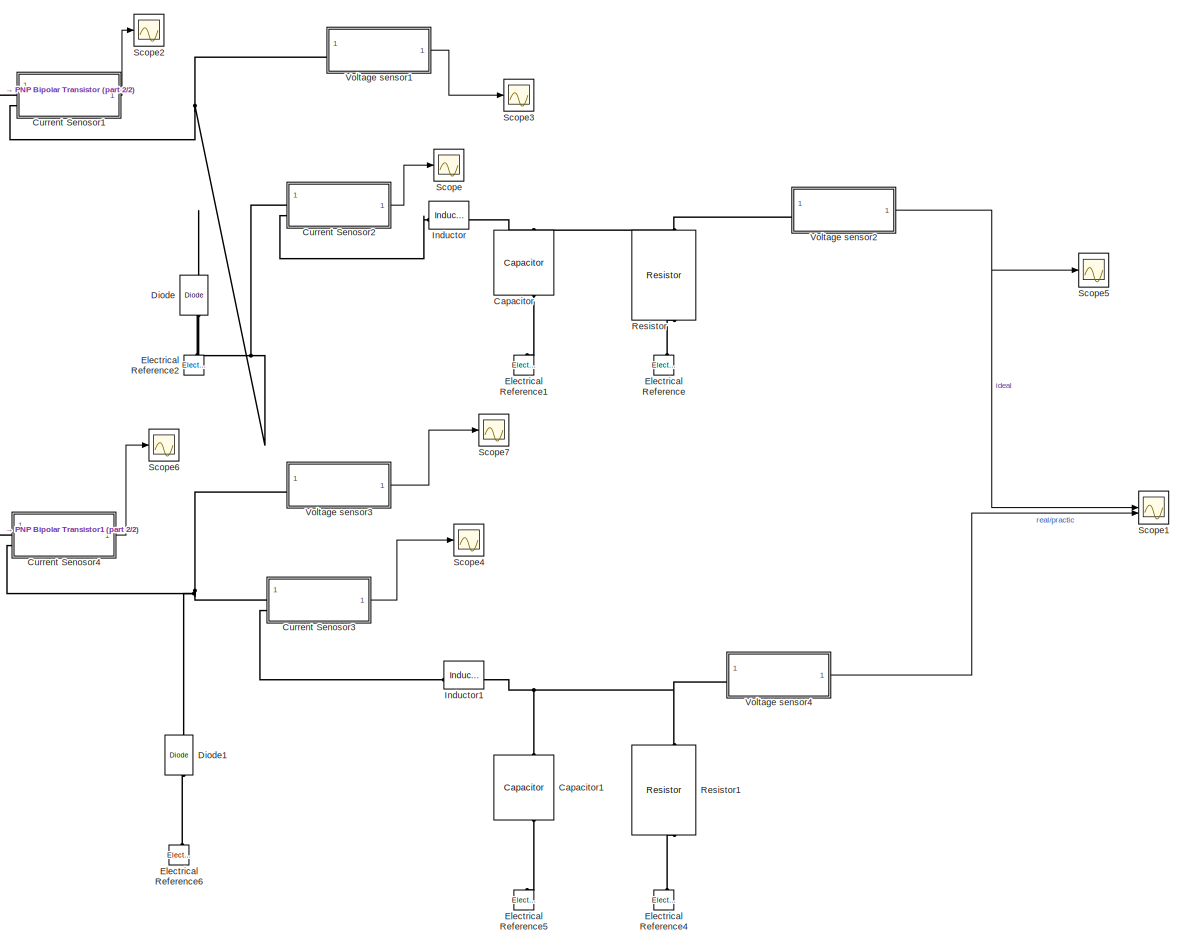
[diagram: root canvas - part 1/2, center side, full height]
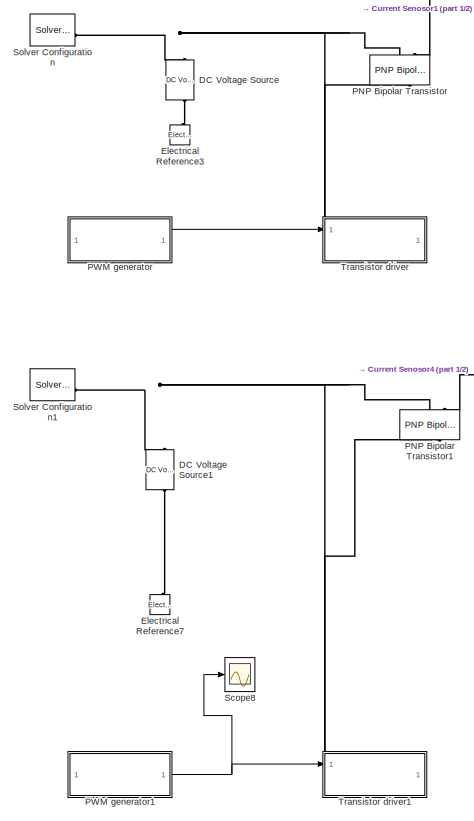
[diagram: root canvas - part 2/2, left side, full height]
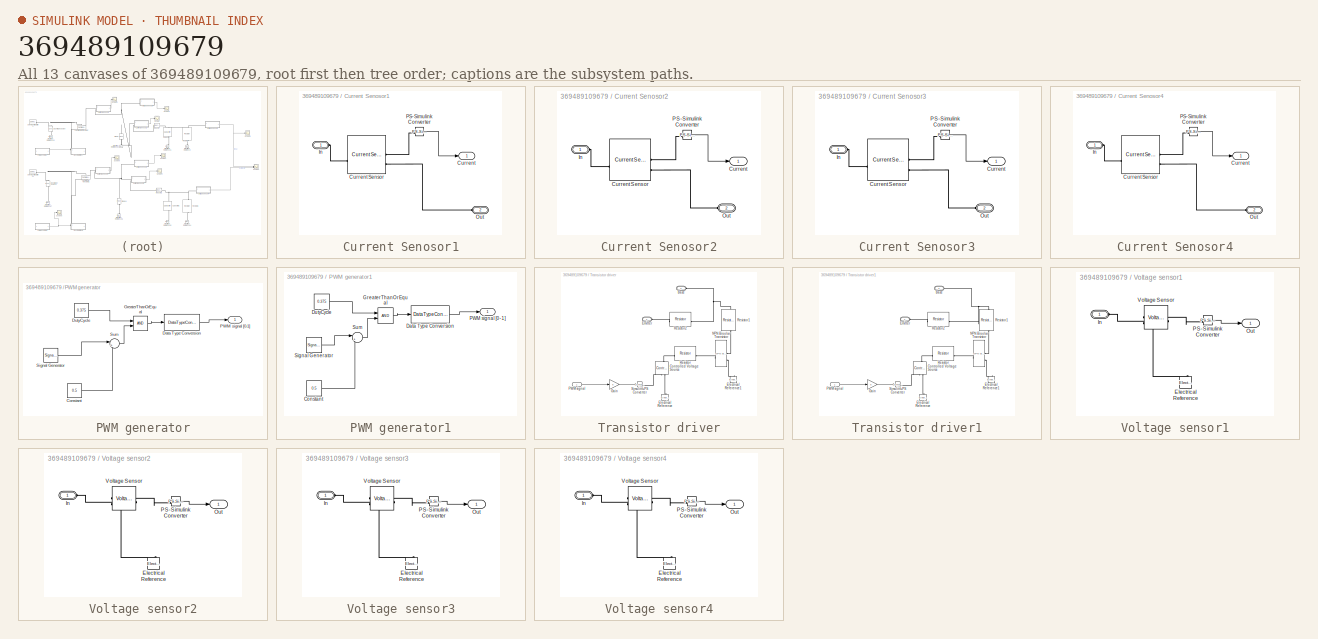
[diagram: thumbnail index - all 13 canvases of the model, root first then tree order]
MODEL slx_369489109679
KIND model
CONFIG AbsTol = auto
CONFIG EnableMultiTasking = off
CONFIG FixedStep = 1e-6
CONFIG MaxStep = auto
CONFIG MinStep = auto
CONFIG RelTol = 1e-5
CONFIG SampleTimeConstraint = Unconstrained
CONFIG SolverName = VariableStepAuto
CONFIG StartTime = 0.0
CONFIG StopTime = 0.05
BLOCK [Reference] Capacitor  REF=fl_lib/Electrical/Electrical Elements/Capacitor
  NameLocation = left
  SourceBlock = fl_lib/Electrical/Electrical Elements/Capacitor
  SourceType = Capacitor
BLOCK [Reference] Capacitor1  REF=fl_lib/Electrical/Electrical Elements/Capacitor
  NameLocation = left
  SourceBlock = fl_lib/Electrical/Electrical Elements/Capacitor
  SourceType = Capacitor
BLOCK [SubSystem] Current Senosor1
BLOCK [Outport] Current Senosor1/Current
BLOCK [Reference] Current Senosor1/Current Sensor  REF=fl_lib/Electrical/Electrical Sensors/Current Sensor
  SourceBlock = fl_lib/Electrical/Electrical Sensors/Current Sensor
  SourceType = Current Sensor
BLOCK [PMIOPort] Current Senosor1/In
  Side = Left
BLOCK [PMIOPort] Current Senosor1/Out
  NameLocation = top
  Port = 2
  Side = Left
BLOCK [Reference] Current Senosor1/PS-Simulink Converter  REF=nesl_utility/PS-Simulink
Converter
  SourceBlock = nesl_utility/PS-Simulink\nConverter
  SourceType = PS-Simulink\nConverter
BLOCK [SubSystem] Current Senosor2
BLOCK [Outport] Current Senosor2/Current
BLOCK [Reference] Current Senosor2/Current Sensor  REF=fl_lib/Electrical/Electrical Sensors/Current Sensor
  SourceBlock = fl_lib/Electrical/Electrical Sensors/Current Sensor
  SourceType = Current Sensor
BLOCK [PMIOPort] Current Senosor2/In
  Side = Left
BLOCK [PMIOPort] Current Senosor2/Out
  NameLocation = top
  Port = 2
  Side = Left
BLOCK [Reference] Current Senosor2/PS-Simulink Converter  REF=nesl_utility/PS-Simulink
Converter
  SourceBlock = nesl_utility/PS-Simulink\nConverter
  SourceType = PS-Simulink\nConverter
BLOCK [SubSystem] Current Senosor3
BLOCK [Outport] Current Senosor3/Current
BLOCK [Reference] Current Senosor3/Current Sensor  REF=fl_lib/Electrical/Electrical Sensors/Current Sensor
  SourceBlock = fl_lib/Electrical/Electrical Sensors/Current Sensor
  SourceType = Current Sensor
BLOCK [PMIOPort] Current Senosor3/In
  Side = Left
BLOCK [PMIOPort] Current Senosor3/Out
  NameLocation = top
  Port = 2
  Side = Left
BLOCK [Reference] Current Senosor3/PS-Simulink Converter  REF=nesl_utility/PS-Simulink
Converter
  SourceBlock = nesl_utility/PS-Simulink\nConverter
  SourceType = PS-Simulink\nConverter
BLOCK [SubSystem] Current Senosor4
BLOCK [Outport] Current Senosor4/Current
BLOCK [Reference] Current Senosor4/Current Sensor  REF=fl_lib/Electrical/Electrical Sensors/Current Sensor
  SourceBlock = fl_lib/Electrical/Electrical Sensors/Current Sensor
  SourceType = Current Sensor
BLOCK [PMIOPort] Current Senosor4/In
  Side = Left
BLOCK [PMIOPort] Current Senosor4/Out
  NameLocation = top
  Port = 2
  Side = Left
BLOCK [Reference] Current Senosor4/PS-Simulink Converter  REF=nesl_utility/PS-Simulink
Converter
  SourceBlock = nesl_utility/PS-Simulink\nConverter
  SourceType = PS-Simulink\nConverter
BLOCK [Reference] DC Voltage Source  REF=fl_lib/Electrical/Electrical Sources/DC Voltage Source
  NameLocation = right
  SourceBlock = fl_lib/Electrical/Electrical Sources/DC Voltage Source
  SourceType = DC Voltage Source
BLOCK [Reference] DC Voltage Source1  REF=fl_lib/Electrical/Electrical Sources/DC Voltage Source
  NameLocation = right
  SourceBlock = fl_lib/Electrical/Electrical Sources/DC Voltage Source
  SourceType = DC Voltage Source
BLOCK [Reference] Diode  REF=ee_lib/Semiconductors &
Converters/Diode
  NameLocation = right
  SourceBlock = ee_lib/Semiconductors &\nConverters/Diode
  SourceType = Diode
BLOCK [Reference] Diode1  REF=ee_lib/Semiconductors &
Converters/Diode
  NameLocation = right
  SourceBlock = ee_lib/Semiconductors &\nConverters/Diode
  SourceType = Diode
BLOCK [Reference] Electrical Reference  REF=fl_lib/Electrical/Electrical Elements/Electrical Reference
  NameLocation = right
  SourceBlock = fl_lib/Electrical/Electrical Elements/Electrical Reference
  SourceType = Electrical Reference
BLOCK [Reference] Electrical Reference1  REF=fl_lib/Electrical/Electrical Elements/Electrical Reference
  NameLocation = right
  SourceBlock = fl_lib/Electrical/Electrical Elements/Electrical Reference
  SourceType = Electrical Reference
BLOCK [Reference] Electrical Reference2  REF=fl_lib/Electrical/Electrical Elements/Electrical Reference
  NameLocation = right
  SourceBlock = fl_lib/Electrical/Electrical Elements/Electrical Reference
  SourceType = Electrical Reference
BLOCK [Reference] Electrical Reference3  REF=fl_lib/Electrical/Electrical Elements/Electrical Reference
  NameLocation = right
  SourceBlock = fl_lib/Electrical/Electrical Elements/Electrical Reference
  SourceType = Electrical Reference
BLOCK [Reference] Electrical Reference4  REF=fl_lib/Electrical/Electrical Elements/Electrical Reference
  NameLocation = right
  SourceBlock = fl_lib/Electrical/Electrical Elements/Electrical Reference
  SourceType = Electrical Reference
BLOCK [Reference] Electrical Reference5  REF=fl_lib/Electrical/Electrical Elements/Electrical Reference
  NameLocation = right
  SourceBlock = fl_lib/Electrical/Electrical Elements/Electrical Reference
  SourceType = Electrical Reference
BLOCK [Reference] Electrical Reference6  REF=fl_lib/Electrical/Electrical Elements/Electrical Reference
  NameLocation = right
  SourceBlock = fl_lib/Electrical/Electrical Elements/Electrical Reference
  SourceType = Electrical Reference
BLOCK [Reference] Electrical Reference7  REF=fl_lib/Electrical/Electrical Elements/Electrical Reference
  NameLocation = right
  SourceBlock = fl_lib/Electrical/Electrical Elements/Electrical Reference
  SourceType = Electrical Reference
BLOCK [Reference] Inductor  REF=fl_lib/Electrical/Electrical Elements/Inductor
  SourceBlock = fl_lib/Electrical/Electrical Elements/Inductor
  SourceType = Inductor
BLOCK [Reference] Inductor1  REF=fl_lib/Electrical/Electrical Elements/Inductor
  SourceBlock = fl_lib/Electrical/Electrical Elements/Inductor
  SourceType = Inductor
BLOCK [Reference] PNP Bipolar Transistor  REF=ee_lib/Semiconductors &
Converters/PNP Bipolar
Transistor
  NameLocation = right
  SourceBlock = ee_lib/Semiconductors &\nConverters/PNP Bipolar\nTransistor
  SourceType = PNP Bipolar\nTransistor
BLOCK [Reference] PNP Bipolar Transistor1  REF=ee_lib/Semiconductors &
Converters/PNP Bipolar
Transistor
  NameLocation = right
  SourceBlock = ee_lib/Semiconductors &\nConverters/PNP Bipolar\nTransistor
  SourceType = PNP Bipolar\nTransistor
BLOCK [SubSystem] PWM generator
BLOCK [Constant] PWM generator/Constant
  Value = 0.5
BLOCK [DataTypeConversion] PWM generator/Data Type Conversion
  RndMeth = Floor
  SaturateOnIntegerOverflow = off
BLOCK [Constant] PWM generator/DutyCycle
  Value = 0.375
BLOCK [RelationalOperator] PWM generator/GreaterThanOrEqual
  InputSameDT = off
  OutDataTypeStr = boolean
  RndMeth = Simplest
BLOCK [Outport] PWM generator/PWM signal [0-1]
BLOCK [SignalGenerator] PWM generator/Signal Generator
  Amplitude = 0.5
  Frequency = 1000
  WaveForm = sawtooth
BLOCK [Sum] PWM generator/Sum
  Inputs = |++
BLOCK [SubSystem] PWM generator1
BLOCK [Constant] PWM generator1/Constant
  Value = 0.5
BLOCK [DataTypeConversion] PWM generator1/Data Type Conversion
  RndMeth = Floor
  SaturateOnIntegerOverflow = off
BLOCK [Constant] PWM generator1/DutyCycle
  Value = 0.375
BLOCK [RelationalOperator] PWM generator1/GreaterThanOrEqual
  InputSameDT = off
  OutDataTypeStr = boolean
  RndMeth = Simplest
BLOCK [Outport] PWM generator1/PWM signal [0-1]
BLOCK [SignalGenerator] PWM generator1/Signal Generator
  Amplitude = 0.5
  Frequency = 1000
  WaveForm = sawtooth
BLOCK [Sum] PWM generator1/Sum
  Inputs = |++
BLOCK [Reference] Resistor  REF=fl_lib/Electrical/Electrical Elements/Resistor
  NameLocation = left
  SourceBlock = fl_lib/Electrical/Electrical Elements/Resistor
  SourceType = Resistor
BLOCK [Reference] Resistor1  REF=fl_lib/Electrical/Electrical Elements/Resistor
  NameLocation = left
  SourceBlock = fl_lib/Electrical/Electrical Elements/Resistor
  SourceType = Resistor
BLOCK [Scope] Scope
  Floating = off
  NumInputPorts = 1
  ScopeSpecificationString = Simulink.scopes.TimeScopeBlockCfg('CurrentConfiguration', extmgr.ConfigurationSet(extmgr.Configuration('Core','General UI',true),extmgr.Configuration('Core','Source UI',true),extmgr.Configuration('Sources','WiredSimulink',true),extmgr.Configuration('Visuals','Time Domain',true,'SerializedDisplays',{struct('MinYLimReal','-1.70854','MaxYLimReal','15.37679','YLabelReal','','MinYLimMag','0.00000','Max...<+1458ch>
BLOCK [Scope] Scope1
  Floating = off
  NumInputPorts = 2
  ScopeSpecificationString = Simulink.scopes.TimeScopeBlockCfg('CurrentConfiguration', extmgr.ConfigurationSet(extmgr.Configuration('Core','General UI',true),extmgr.Configuration('Core','Source UI',true),extmgr.Configuration('Sources','WiredSimulink',true,'DataLoggingVariableName','ScopeData1'),extmgr.Configuration('Visuals','Time Domain',true,'SerializedDisplays',{struct('MinYLimReal','-2.50886','MaxYLimReal','22.57977','YLa...<+1563ch>
BLOCK [Scope] Scope2
  Floating = off
  NumInputPorts = 1
  ScopeSpecificationString = Simulink.scopes.TimeScopeBlockCfg('CurrentConfiguration', extmgr.ConfigurationSet(extmgr.Configuration('Core','General UI',true),extmgr.Configuration('Core','Source UI',true),extmgr.Configuration('Sources','WiredSimulink',true,'DataLoggingVariableName','ScopeData2'),extmgr.Configuration('Visuals','Time Domain',true,'SerializedDisplays',{struct('MinYLimReal','-1.71339','MaxYLimReal','15.37733','YLa...<+1497ch>
BLOCK [Scope] Scope3
  Floating = off
  NumInputPorts = 1
  ScopeSpecificationString = Simulink.scopes.TimeScopeBlockCfg('CurrentConfiguration', extmgr.ConfigurationSet(extmgr.Configuration('Core','General UI',true),extmgr.Configuration('Core','Source UI',true),extmgr.Configuration('Sources','WiredSimulink',true,'DataLoggingVariableName','ScopeData1'),extmgr.Configuration('Visuals','Time Domain',true,'SerializedDisplays',{struct('MinYLimReal','-6.12782','MaxYLimReal','54.01372','YLa...<+1496ch>
BLOCK [Scope] Scope4
  Floating = off
  NumInputPorts = 1
  ScopeSpecificationString = Simulink.scopes.TimeScopeBlockCfg('CurrentConfiguration', extmgr.ConfigurationSet(extmgr.Configuration('Core','General UI',true),extmgr.Configuration('Core','Source UI',true),extmgr.Configuration('Sources','WiredSimulink',true,'DataLoggingVariableName','ScopeData1'),extmgr.Configuration('Visuals','Time Domain',true),extmgr.Configuration('Tools','Plot Navigation',true),extmgr.Configuration('Tools',...<+40ch>
BLOCK [Scope] Scope5
  Floating = off
  NumInputPorts = 1
  ScopeSpecificationString = Simulink.scopes.TimeScopeBlockCfg('CurrentConfiguration', extmgr.ConfigurationSet(extmgr.Configuration('Core','General UI',true),extmgr.Configuration('Core','Source UI',true),extmgr.Configuration('Sources','WiredSimulink',true,'DataLoggingVariableName','ScopeData1'),extmgr.Configuration('Visuals','Time Domain',true,'SerializedDisplays',{struct('MinYLimReal','15.61392','MaxYLimReal','19.79048','YLa...<+1550ch>
BLOCK [Scope] Scope6
  Floating = off
  NumInputPorts = 1
  ScopeSpecificationString = Simulink.scopes.TimeScopeBlockCfg('CurrentConfiguration', extmgr.ConfigurationSet(extmgr.Configuration('Core','General UI',true),extmgr.Configuration('Core','Source UI',true),extmgr.Configuration('Sources','WiredSimulink',true,'DataLoggingVariableName','ScopeData3'),extmgr.Configuration('Visuals','Time Domain',true,'SerializedDisplays',{struct('MinYLimReal','-1.19117','MaxYLimReal','10.67729','YLa...<+1468ch>
BLOCK [Scope] Scope7
  Floating = off
  NumInputPorts = 1
  ScopeSpecificationString = Simulink.scopes.TimeScopeBlockCfg('CurrentConfiguration', extmgr.ConfigurationSet(extmgr.Configuration('Core','General UI',true),extmgr.Configuration('Core','Source UI',true),extmgr.Configuration('Sources','WiredSimulink',true,'DataLoggingVariableName','ScopeData4'),extmgr.Configuration('Visuals','Time Domain',true),extmgr.Configuration('Tools','Plot Navigation',true),extmgr.Configuration('Tools',...<+40ch>
BLOCK [Scope] Scope8
  Floating = off
  NumInputPorts = 1
  ScopeSpecificationString = Simulink.scopes.TimeScopeBlockCfg('CurrentConfiguration', extmgr.ConfigurationSet(extmgr.Configuration('Core','General UI',true),extmgr.Configuration('Core','Source UI',true),extmgr.Configuration('Sources','WiredSimulink',true,'DataLoggingVariableName','ScopeData2'),extmgr.Configuration('Visuals','Time Domain',true,'SerializedDisplays',{struct('MinYLimReal','15.61392','MaxYLimReal','19.79048','YLa...<+1562ch>
BLOCK [Reference] Solver Configuration  REF=nesl_utility/Solver
Configuration
  SourceBlock = nesl_utility/Solver\nConfiguration
  SourceType = Solver\nConfiguration
BLOCK [Reference] Solver Configuration1  REF=nesl_utility/Solver
Configuration
  SourceBlock = nesl_utility/Solver\nConfiguration
  SourceType = Solver\nConfiguration
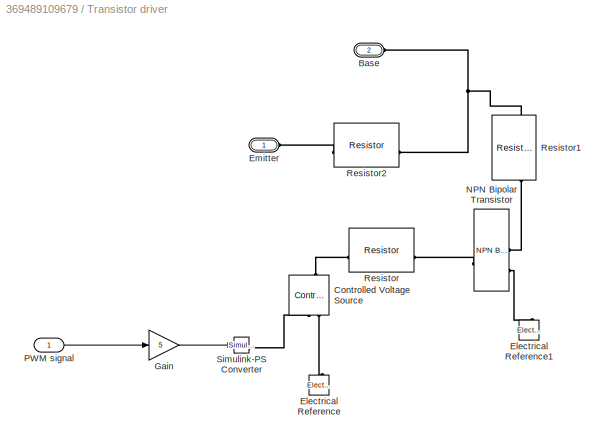
BLOCK [SubSystem] Transistor driver
  PortSchema = {"entries":[{"content":{"sides":[{"content":{"connectorIds":["In1"]},"type":"ConnectorPlacement.EquallySpacedRectSide","uuid":"a6be098f-ab3a-441b-a65d-8df574793029"},{"content":{"side":"RIGHT"},"type":"ConnectorPlacement.EquallySpacedRectSide","uuid":"bbf0bc68-de59-411e-b26e-8123318d7d9c"},{"content":{"connectorIds":["LConn1","LConn2"],"side":"TOP"},"type":"ConnectorPlacement.EquallySpacedRectSide...<+233ch>
BLOCK [PMIOPort] Transistor driver/Base
  Port = 2
  Side = Left
BLOCK [Reference] Transistor driver/Controlled Voltage Source  REF=fl_lib/Electrical/Electrical Sources/Controlled Voltage
Source
  NameLocation = right
  SourceBlock = fl_lib/Electrical/Electrical Sources/Controlled Voltage\nSource
  SourceType = Controlled Voltage\nSource
BLOCK [Reference] Transistor driver/Electrical Reference  REF=fl_lib/Electrical/Electrical Elements/Electrical Reference
  NameLocation = right
  SourceBlock = fl_lib/Electrical/Electrical Elements/Electrical Reference
  SourceType = Electrical Reference
BLOCK [Reference] Transistor driver/Electrical Reference1  REF=fl_lib/Electrical/Electrical Elements/Electrical Reference
  NameLocation = right
  SourceBlock = fl_lib/Electrical/Electrical Elements/Electrical Reference
  SourceType = Electrical Reference
BLOCK [PMIOPort] Transistor driver/Emitter
  Side = Left
BLOCK [Gain] Transistor driver/Gain
  Gain = 5
BLOCK [Reference] Transistor driver/NPN Bipolar Transistor  REF=ee_lib/Semiconductors &
Converters/NPN Bipolar
Transistor
  SourceBlock = ee_lib/Semiconductors &\nConverters/NPN Bipolar\nTransistor
  SourceType = NPN Bipolar\nTransistor
BLOCK [Inport] Transistor driver/PWM signal
BLOCK [Reference] Transistor driver/Resistor  REF=fl_lib/Electrical/Electrical Elements/Resistor
  NameLocation = top
  SourceBlock = fl_lib/Electrical/Electrical Elements/Resistor
  SourceType = Resistor
BLOCK [Reference] Transistor driver/Resistor1  REF=fl_lib/Electrical/Electrical Elements/Resistor
  NameLocation = left
  SourceBlock = fl_lib/Electrical/Electrical Elements/Resistor
  SourceType = Resistor
BLOCK [Reference] Transistor driver/Resistor2  REF=fl_lib/Electrical/Electrical Elements/Resistor
  SourceBlock = fl_lib/Electrical/Electrical Elements/Resistor
  SourceType = Resistor
BLOCK [Reference] Transistor driver/Simulink-PS Converter  REF=nesl_utility/Simulink-PS
Converter
  SourceBlock = nesl_utility/Simulink-PS\nConverter
  SourceType = Simulink-PS\nConverter
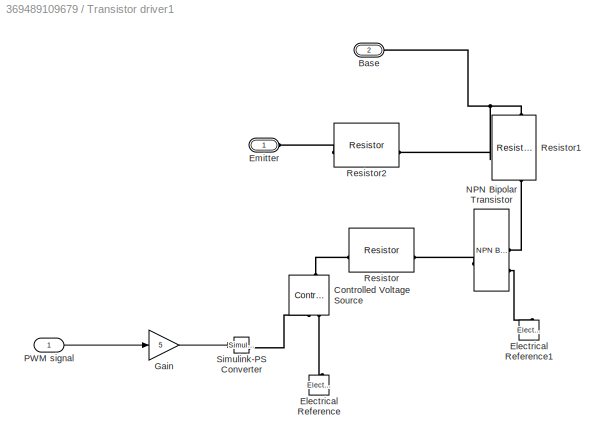
BLOCK [SubSystem] Transistor driver1
  PortSchema = {"entries":[{"content":{"sides":[{"content":{"connectorIds":["In1"]},"type":"ConnectorPlacement.EquallySpacedRectSide","uuid":"a6be098f-ab3a-441b-a65d-8df574793029"},{"content":{"side":"RIGHT"},"type":"ConnectorPlacement.EquallySpacedRectSide","uuid":"bbf0bc68-de59-411e-b26e-8123318d7d9c"},{"content":{"connectorIds":["LConn1","LConn2"],"side":"TOP"},"type":"ConnectorPlacement.EquallySpacedRectSide...<+233ch>
BLOCK [PMIOPort] Transistor driver1/Base
  Port = 2
  Side = Left
BLOCK [Reference] Transistor driver1/Controlled Voltage Source  REF=fl_lib/Electrical/Electrical Sources/Controlled Voltage
Source
  NameLocation = right
  SourceBlock = fl_lib/Electrical/Electrical Sources/Controlled Voltage\nSource
  SourceType = Controlled Voltage\nSource
BLOCK [Reference] Transistor driver1/Electrical Reference  REF=fl_lib/Electrical/Electrical Elements/Electrical Reference
  NameLocation = right
  SourceBlock = fl_lib/Electrical/Electrical Elements/Electrical Reference
  SourceType = Electrical Reference
BLOCK [Reference] Transistor driver1/Electrical Reference1  REF=fl_lib/Electrical/Electrical Elements/Electrical Reference
  NameLocation = right
  SourceBlock = fl_lib/Electrical/Electrical Elements/Electrical Reference
  SourceType = Electrical Reference
BLOCK [PMIOPort] Transistor driver1/Emitter
  Side = Left
BLOCK [Gain] Transistor driver1/Gain
  Gain = 5
BLOCK [Reference] Transistor driver1/NPN Bipolar Transistor  REF=ee_lib/Semiconductors &
Converters/NPN Bipolar
Transistor
  SourceBlock = ee_lib/Semiconductors &\nConverters/NPN Bipolar\nTransistor
  SourceType = NPN Bipolar\nTransistor
BLOCK [Inport] Transistor driver1/PWM signal
BLOCK [Reference] Transistor driver1/Resistor  REF=fl_lib/Electrical/Electrical Elements/Resistor
  NameLocation = top
  SourceBlock = fl_lib/Electrical/Electrical Elements/Resistor
  SourceType = Resistor
BLOCK [Reference] Transistor driver1/Resistor1  REF=fl_lib/Electrical/Electrical Elements/Resistor
  NameLocation = left
  SourceBlock = fl_lib/Electrical/Electrical Elements/Resistor
  SourceType = Resistor
BLOCK [Reference] Transistor driver1/Resistor2  REF=fl_lib/Electrical/Electrical Elements/Resistor
  SourceBlock = fl_lib/Electrical/Electrical Elements/Resistor
  SourceType = Resistor
BLOCK [Reference] Transistor driver1/Simulink-PS Converter  REF=nesl_utility/Simulink-PS
Converter
  SourceBlock = nesl_utility/Simulink-PS\nConverter
  SourceType = Simulink-PS\nConverter
BLOCK [SubSystem] Voltage sensor1
BLOCK [Reference] Voltage sensor1/Electrical Reference  REF=fl_lib/Electrical/Electrical Elements/Electrical Reference
  NameLocation = right
  SourceBlock = fl_lib/Electrical/Electrical Elements/Electrical Reference
  SourceType = Electrical Reference
BLOCK [PMIOPort] Voltage sensor1/In
  Side = Left
BLOCK [Outport] Voltage sensor1/Out
BLOCK [Reference] Voltage sensor1/PS-Simulink Converter  REF=nesl_utility/PS-Simulink
Converter
  SourceBlock = nesl_utility/PS-Simulink\nConverter
  SourceType = PS-Simulink\nConverter
BLOCK [Reference] Voltage sensor1/Voltage Sensor  REF=fl_lib/Electrical/Electrical Sensors/Voltage Sensor
  NameLocation = top
  SourceBlock = fl_lib/Electrical/Electrical Sensors/Voltage Sensor
  SourceType = Voltage Sensor
BLOCK [SubSystem] Voltage sensor2
BLOCK [Reference] Voltage sensor2/Electrical Reference  REF=fl_lib/Electrical/Electrical Elements/Electrical Reference
  NameLocation = right
  SourceBlock = fl_lib/Electrical/Electrical Elements/Electrical Reference
  SourceType = Electrical Reference
BLOCK [PMIOPort] Voltage sensor2/In
  Side = Left
BLOCK [Outport] Voltage sensor2/Out
BLOCK [Reference] Voltage sensor2/PS-Simulink Converter  REF=nesl_utility/PS-Simulink
Converter
  SourceBlock = nesl_utility/PS-Simulink\nConverter
  SourceType = PS-Simulink\nConverter
BLOCK [Reference] Voltage sensor2/Voltage Sensor  REF=fl_lib/Electrical/Electrical Sensors/Voltage Sensor
  NameLocation = top
  SourceBlock = fl_lib/Electrical/Electrical Sensors/Voltage Sensor
  SourceType = Voltage Sensor
BLOCK [SubSystem] Voltage sensor3
BLOCK [Reference] Voltage sensor3/Electrical Reference  REF=fl_lib/Electrical/Electrical Elements/Electrical Reference
  NameLocation = right
  SourceBlock = fl_lib/Electrical/Electrical Elements/Electrical Reference
  SourceType = Electrical Reference
BLOCK [PMIOPort] Voltage sensor3/In
  Side = Left
BLOCK [Outport] Voltage sensor3/Out
BLOCK [Reference] Voltage sensor3/PS-Simulink Converter  REF=nesl_utility/PS-Simulink
Converter
  SourceBlock = nesl_utility/PS-Simulink\nConverter
  SourceType = PS-Simulink\nConverter
BLOCK [Reference] Voltage sensor3/Voltage Sensor  REF=fl_lib/Electrical/Electrical Sensors/Voltage Sensor
  NameLocation = top
  SourceBlock = fl_lib/Electrical/Electrical Sensors/Voltage Sensor
  SourceType = Voltage Sensor
BLOCK [SubSystem] Voltage sensor4
BLOCK [Reference] Voltage sensor4/Electrical Reference  REF=fl_lib/Electrical/Electrical Elements/Electrical Reference
  NameLocation = right
  SourceBlock = fl_lib/Electrical/Electrical Elements/Electrical Reference
  SourceType = Electrical Reference
BLOCK [PMIOPort] Voltage sensor4/In
  Side = Left
BLOCK [Outport] Voltage sensor4/Out
BLOCK [Reference] Voltage sensor4/PS-Simulink Converter  REF=nesl_utility/PS-Simulink
Converter
  SourceBlock = nesl_utility/PS-Simulink\nConverter
  SourceType = PS-Simulink\nConverter
BLOCK [Reference] Voltage sensor4/Voltage Sensor  REF=fl_lib/Electrical/Electrical Sensors/Voltage Sensor
  NameLocation = top
  SourceBlock = fl_lib/Electrical/Electrical Sensors/Voltage Sensor
  SourceType = Voltage Sensor
LINE Current Senosor1/PS-Simulink Converter:1 -> Current Senosor1/Current:1
LINE Current Senosor1:1 -> Scope2:1
LINE Current Senosor2/PS-Simulink Converter:1 -> Current Senosor2/Current:1
LINE Current Senosor2:1 -> Scope:1
LINE Current Senosor3/PS-Simulink Converter:1 -> Current Senosor3/Current:1
LINE Current Senosor3:1 -> Scope4:1
LINE Current Senosor4/PS-Simulink Converter:1 -> Current Senosor4/Current:1
LINE Current Senosor4:1 -> Scope6:1
LINE PWM generator/Constant:1 -> PWM generator/Sum:2
LINE PWM generator/Data Type Conversion:1 -> PWM generator/PWM signal [0-1]:1
LINE PWM generator/DutyCycle:1 -> PWM generator/GreaterThanOrEqual:1
LINE PWM generator/GreaterThanOrEqual:1 -> PWM generator/Data Type Conversion:1
LINE PWM generator/Signal Generator:1 -> PWM generator/Sum:1
LINE PWM generator/Sum:1 -> PWM generator/GreaterThanOrEqual:2
LINE PWM generator1/Constant:1 -> PWM generator1/Sum:2
LINE PWM generator1/Data Type Conversion:1 -> PWM generator1/PWM signal [0-1]:1
LINE PWM generator1/DutyCycle:1 -> PWM generator1/GreaterThanOrEqual:1
LINE PWM generator1/GreaterThanOrEqual:1 -> PWM generator1/Data Type Conversion:1
LINE PWM generator1/Signal Generator:1 -> PWM generator1/Sum:1
LINE PWM generator1/Sum:1 -> PWM generator1/GreaterThanOrEqual:2
NET PWM generator1:1 -> Scope8:1, Transistor driver1:1
LINE PWM generator:1 -> Transistor driver:1
LINE Transistor driver/Gain:1 -> Transistor driver/Simulink-PS Converter:1
LINE Transistor driver/PWM signal:1 -> Transistor driver/Gain:1
LINE Transistor driver1/Gain:1 -> Transistor driver1/Simulink-PS Converter:1
LINE Transistor driver1/PWM signal:1 -> Transistor driver1/Gain:1
LINE Voltage sensor1/PS-Simulink Converter:1 -> Voltage sensor1/Out:1
LINE Voltage sensor1:1 -> Scope3:1
LINE Voltage sensor2/PS-Simulink Converter:1 -> Voltage sensor2/Out:1
NET Voltage sensor2:1 -> Scope1:1, Scope5:1
LINE Voltage sensor3/PS-Simulink Converter:1 -> Voltage sensor3/Out:1
LINE Voltage sensor3:1 -> Scope7:1
LINE Voltage sensor4/PS-Simulink Converter:1 -> Voltage sensor4/Out:1
LINE Voltage sensor4:1 -> Scope1:2
PNET net1: Capacitor1:LConn1 -- Inductor1:RConn1 -- Resistor1:LConn1 -- Voltage sensor4:LConn1
PLINE Capacitor1:RConn1 -- Electrical Reference5:LConn1
PNET net2: Capacitor:LConn1 -- Inductor:RConn1 -- Resistor:LConn1 -- Voltage sensor2:LConn1
PLINE Capacitor:RConn1 -- Electrical Reference1:LConn1
PLINE Current Senosor1/Current Sensor:LConn1 -- Current Senosor1/In:RConn1
PLINE Current Senosor1/Current Sensor:RConn1 -- Current Senosor1/PS-Simulink Converter:LConn1
PLINE Current Senosor1/Current Sensor:RConn2 -- Current Senosor1/Out:RConn1
PLINE Current Senosor1:LConn1 -- PNP Bipolar Transistor:RConn2
PNET net3: Current Senosor1:LConn2 -- Current Senosor2:LConn1 -- Diode:RConn1 -- Voltage sensor1:LConn1
PLINE Current Senosor2/Current Sensor:LConn1 -- Current Senosor2/In:RConn1
PLINE Current Senosor2/Current Sensor:RConn1 -- Current Senosor2/PS-Simulink Converter:LConn1
PLINE Current Senosor2/Current Sensor:RConn2 -- Current Senosor2/Out:RConn1
PLINE Current Senosor2:LConn2 -- Inductor:LConn1
PLINE Current Senosor3/Current Sensor:LConn1 -- Current Senosor3/In:RConn1
PLINE Current Senosor3/Current Sensor:RConn1 -- Current Senosor3/PS-Simulink Converter:LConn1
PLINE Current Senosor3/Current Sensor:RConn2 -- Current Senosor3/Out:RConn1
PNET net4: Current Senosor3:LConn1 -- Current Senosor4:LConn2 -- Diode1:RConn1 -- Voltage sensor3:LConn1
PLINE Current Senosor3:LConn2 -- Inductor1:LConn1
PLINE Current Senosor4/Current Sensor:LConn1 -- Current Senosor4/In:RConn1
PLINE Current Senosor4/Current Sensor:RConn1 -- Current Senosor4/PS-Simulink Converter:LConn1
PLINE Current Senosor4/Current Sensor:RConn2 -- Current Senosor4/Out:RConn1
PLINE Current Senosor4:LConn1 -- PNP Bipolar Transistor1:RConn2
PNET net5: DC Voltage Source1:LConn1 -- PNP Bipolar Transistor1:RConn1 -- Solver Configuration1:RConn1 -- Transistor driver1:LConn1
PLINE DC Voltage Source1:RConn1 -- Electrical Reference7:LConn1
PNET net6: DC Voltage Source:LConn1 -- PNP Bipolar Transistor:RConn1 -- Solver Configuration:RConn1 -- Transistor driver:LConn1
PLINE DC Voltage Source:RConn1 -- Electrical Reference3:LConn1
PLINE Diode1:LConn1 -- Electrical Reference6:LConn1
PLINE Diode:LConn1 -- Electrical Reference2:LConn1
PLINE Electrical Reference4:LConn1 -- Resistor1:RConn1
PLINE Electrical Reference:LConn1 -- Resistor:RConn1
PLINE PNP Bipolar Transistor1:LConn1 -- Transistor driver1:LConn2
PLINE PNP Bipolar Transistor:LConn1 -- Transistor driver:LConn2
PNET net7: Transistor driver/Base:RConn1 -- Transistor driver/Resistor1:LConn1 -- Transistor driver/Resistor2:RConn1
PLINE Transistor driver/Controlled Voltage Source:LConn1 -- Transistor driver/Resistor:RConn1
PLINE Transistor driver/Controlled Voltage Source:RConn1 -- Transistor driver/Simulink-PS Converter:RConn1
PLINE Transistor driver/Controlled Voltage Source:RConn2 -- Transistor driver/Electrical Reference:LConn1
PLINE Transistor driver/Electrical Reference1:LConn1 -- Transistor driver/NPN Bipolar Transistor:RConn2
PLINE Transistor driver/Emitter:RConn1 -- Transistor driver/Resistor2:LConn1
PLINE Transistor driver/NPN Bipolar Transistor:LConn1 -- Transistor driver/Resistor:LConn1
PLINE Transistor driver/NPN Bipolar Transistor:RConn1 -- Transistor driver/Resistor1:RConn1
PNET net8: Transistor driver1/Base:RConn1 -- Transistor driver1/Resistor1:LConn1 -- Transistor driver1/Resistor2:RConn1
PLINE Transistor driver1/Controlled Voltage Source:LConn1 -- Transistor driver1/Resistor:RConn1
PLINE Transistor driver1/Controlled Voltage Source:RConn1 -- Transistor driver1/Simulink-PS Converter:RConn1
PLINE Transistor driver1/Controlled Voltage Source:RConn2 -- Transistor driver1/Electrical Reference:LConn1
PLINE Transistor driver1/Electrical Reference1:LConn1 -- Transistor driver1/NPN Bipolar Transistor:RConn2
PLINE Transistor driver1/Emitter:RConn1 -- Transistor driver1/Resistor2:LConn1
PLINE Transistor driver1/NPN Bipolar Transistor:LConn1 -- Transistor driver1/Resistor:LConn1
PLINE Transistor driver1/NPN Bipolar Transistor:RConn1 -- Transistor driver1/Resistor1:RConn1
PLINE Voltage sensor1/Electrical Reference:LConn1 -- Voltage sensor1/Voltage Sensor:RConn2
PLINE Voltage sensor1/In:RConn1 -- Voltage sensor1/Voltage Sensor:LConn1
PLINE Voltage sensor1/PS-Simulink Converter:LConn1 -- Voltage sensor1/Voltage Sensor:RConn1
PLINE Voltage sensor2/Electrical Reference:LConn1 -- Voltage sensor2/Voltage Sensor:RConn2
PLINE Voltage sensor2/In:RConn1 -- Voltage sensor2/Voltage Sensor:LConn1
PLINE Voltage sensor2/PS-Simulink Converter:LConn1 -- Voltage sensor2/Voltage Sensor:RConn1
PLINE Voltage sensor3/Electrical Reference:LConn1 -- Voltage sensor3/Voltage Sensor:RConn2
PLINE Voltage sensor3/In:RConn1 -- Voltage sensor3/Voltage Sensor:LConn1
PLINE Voltage sensor3/PS-Simulink Converter:LConn1 -- Voltage sensor3/Voltage Sensor:RConn1
PLINE Voltage sensor4/Electrical Reference:LConn1 -- Voltage sensor4/Voltage Sensor:RConn2
PLINE Voltage sensor4/In:RConn1 -- Voltage sensor4/Voltage Sensor:LConn1
PLINE Voltage sensor4/PS-Simulink Converter:LConn1 -- Voltage sensor4/Voltage Sensor:RConn1
note: NET lines group one-source signal fan-out (src -> all destinations, sorted); 1:1 wires keep LINE; PNET lines group multi-terminal physical nets as a canonical sorted terminal list (undirected conserving connections); 2-terminal nets keep the pairwise PLINE form
